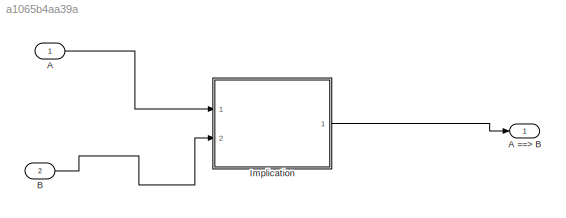
MODEL slx_a1065b4aa39a
KIND model
CONFIG AbsTol = auto
CONFIG EnableMultiTasking = on
CONFIG FixedStep = 0.1
CONFIG MaxStep = auto
CONFIG MinStep = auto
CONFIG RelTol = 1e-3
CONFIG SampleTimeConstraint = Unconstrained
CONFIG Solver = FixedStepAuto
CONFIG SolverName = FixedStepAuto
CONFIG StartTime = 0.0
CONFIG StopTime = 10.0
BLOCK [Inport] A
  IconDisplay = Port number
BLOCK [Outport] A ==> B
  IconDisplay = Port number
BLOCK [Inport] B
  IconDisplay = Port number
  Port = 2
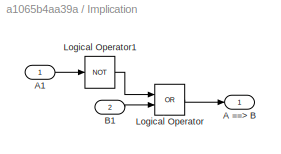
BLOCK [SubSystem] Implication
  Ports = [2, 1]
  RequestExecContextInheritance = off
  Variant = off
BLOCK [Outport] Implication/A ==> B
  IconDisplay = Port number
BLOCK [Inport] Implication/A1
  IconDisplay = Port number
BLOCK [Inport] Implication/B1
  IconDisplay = Port number
  Port = 2
BLOCK [Logic] Implication/Logical Operator
  AllPortsSameDT = off
  Operator = OR
  OutDataTypeStr = boolean
  Ports = [2, 1]
BLOCK [Logic] Implication/Logical Operator1
  AllPortsSameDT = off
  Operator = NOT
  OutDataTypeStr = boolean
  Ports = [1, 1]
LINE A:1 -> Implication:1
LINE B:1 -> Implication:2
LINE Implication/A1:1 -> Implication/Logical Operator1:1
LINE Implication/B1:1 -> Implication/Logical Operator:2
LINE Implication/Logical Operator1:1 -> Implication/Logical Operator:1
LINE Implication/Logical Operator:1 -> Implication/A ==> B:1
LINE Implication:1 -> A ==> B:1
